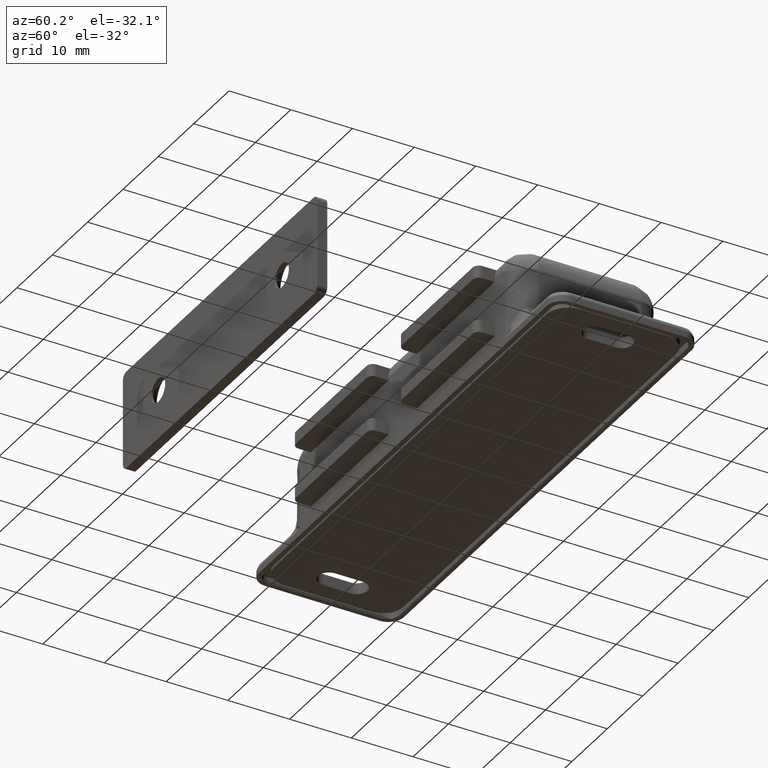
[diagram: clean part render]
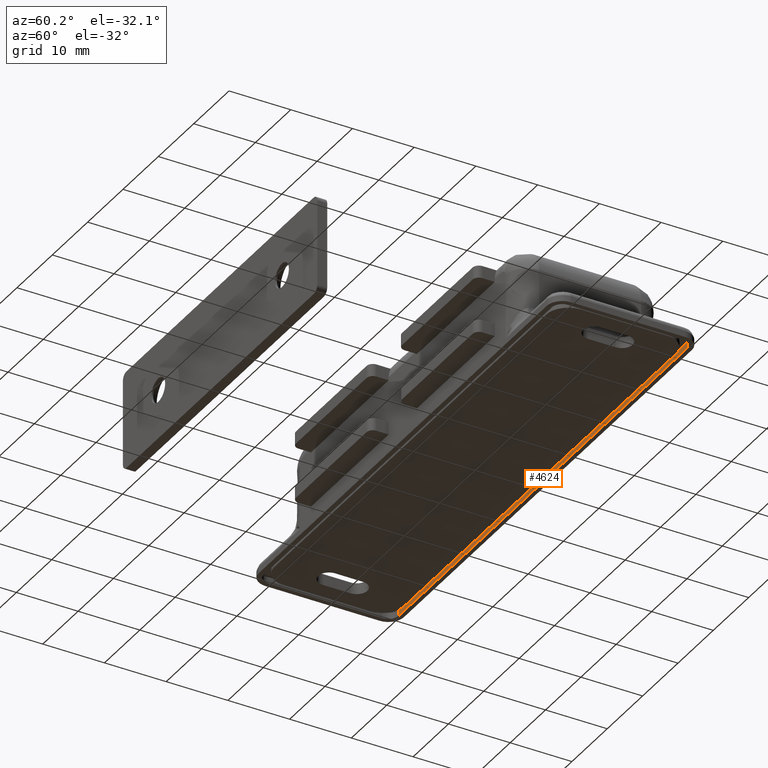
[diagram: same view with one face highlighted and labeled with its STEP entity id]
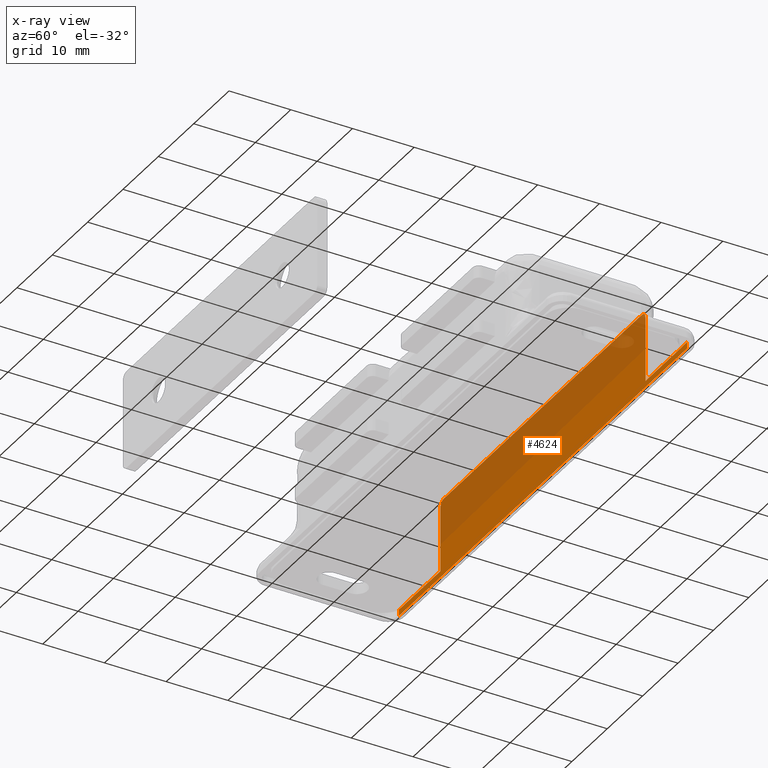
[diagram: x-ray of the same camera — body ghosted, the highlighted face saturated]
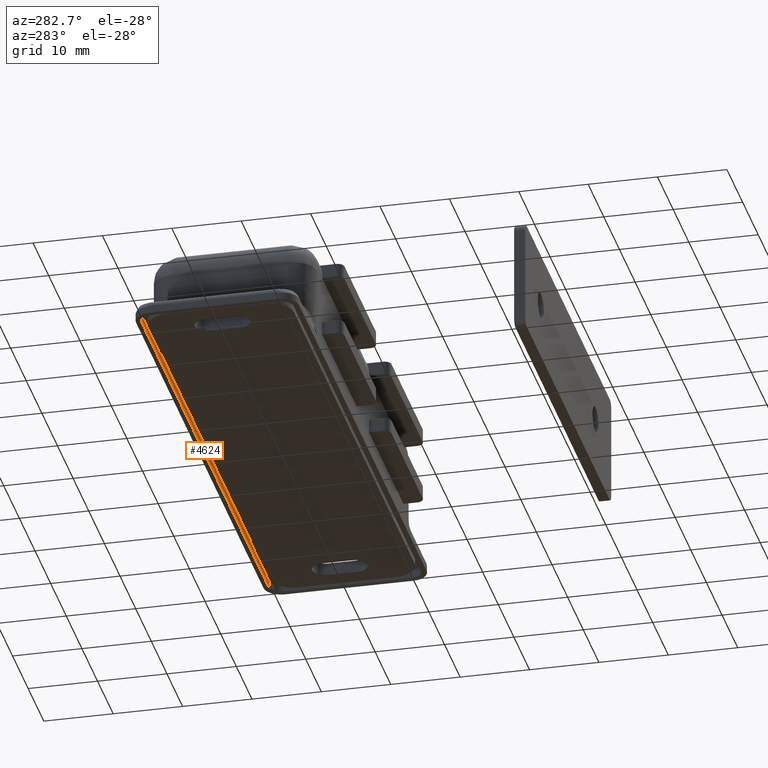
[diagram: same view with one face highlighted and labeled with its STEP entity id]
A machine part, auxiliary view. The second image highlights one B-rep face of the part: STEP entity #4624.
The next image is the same camera in x-ray: the body ghosted, the highlighted face saturated — about 51% of this face is hidden behind the body in this view.
A second angle (auxiliary view) of the same face is appended — the face is thin or edge-on in the first view.
In plain terms, the highlighted face is a freeform B-spline surface patch.
Its self-contained STEP definition (entity closure, byte-faithful):
#2725=CARTESIAN_POINT('',(29.0,10.949999999999999,1.0));
#2726=VERTEX_POINT('',#2725);
#3156=CARTESIAN_POINT('',(-29.000003000000000,10.949999999999999,1.0));
#3157=VERTEX_POINT('',#3156);
#3389=CARTESIAN_POINT('',(-40.750003000000000,10.949999999999999,1.0));
#3390=VERTEX_POINT('',#3389);
#3454=CARTESIAN_POINT('',(-40.750003000000000,10.949999999999999,1.0));
#3455=CARTESIAN_POINT('',(-29.000003000000000,10.949999999999999,1.0));
#3456=QUASI_UNIFORM_CURVE('',1,(#3454,#3455),.UNSPECIFIED.,.F.,.U.);
#3457=EDGE_CURVE('',#3390,#3157,#3456,.T.);
#3636=CARTESIAN_POINT('',(40.750000000000000,10.949999999999999,1.0));
#3637=VERTEX_POINT('',#3636);
#3699=CARTESIAN_POINT('',(29.0,10.949999999999999,1.0));
#3700=CARTESIAN_POINT('',(40.750000000000000,10.949999999999999,1.0));
#3701=QUASI_UNIFORM_CURVE('',1,(#3699,#3700),.UNSPECIFIED.,.F.,.U.);
#3702=EDGE_CURVE('',#2726,#3637,#3701,.T.);
#3773=CARTESIAN_POINT('',(40.750000000000000,10.949999999999999,0.0));
#3774=VERTEX_POINT('',#3773);
#3775=CARTESIAN_POINT('',(40.750000000000000,10.949999999999999,1.0));
#3776=CARTESIAN_POINT('',(40.750000000000000,10.949999999999999,0.0));
#3777=QUASI_UNIFORM_CURVE('',1,(#3775,#3776),.UNSPECIFIED.,.F.,.U.);
#3778=EDGE_CURVE('',#3637,#3774,#3777,.T.);
#3825=CARTESIAN_POINT('',(-40.750003000000000,10.949999999999999,0.0));
#3826=VERTEX_POINT('',#3825);
#3842=CARTESIAN_POINT('',(-40.750003000000000,10.949999999999999,0.0));
#3843=CARTESIAN_POINT('',(-40.750003000000000,10.949999999999999,1.0));
#3844=QUASI_UNIFORM_CURVE('',1,(#3842,#3843),.UNSPECIFIED.,.F.,.U.);
#3845=EDGE_CURVE('',#3826,#3390,#3844,.T.);
#3929=CARTESIAN_POINT('',(-28.000003000000000,10.949999999999999,12.500000000000000));
#3930=VERTEX_POINT('',#3929);
#3961=CARTESIAN_POINT('',(-29.000003000000000,10.949999999999999,11.500000000000000));
#3962=VERTEX_POINT('',#3961);
#3976=CARTESIAN_POINT('',(-28.000003000000000,10.949999999999999,12.500000000000000));
#3977=CARTESIAN_POINT('',(-29.000002999999996,10.949999999999999,12.500000000000000));
#3978=CARTESIAN_POINT('',(-29.000003000000000,10.949999999999999,11.500000000000000));
#3986=(BOUNDED_CURVE()B_SPLINE_CURVE(2,(#3976,#3977,#3978),.UNSPECIFIED.,.F.,.U.)CURVE()GEOMETRIC_REPRESENTATION_ITEM()QUASI_UNIFORM_CURVE()RATIONAL_B_SPLINE_CURVE((1.0,0.707106781186548,1.0))REPRESENTATION_ITEM(''));
#3987=EDGE_CURVE('',#3930,#3962,#3986,.T.);
#4291=CARTESIAN_POINT('',(29.0,10.949999999999999,11.500000000000000));
#4292=VERTEX_POINT('',#4291);
#4293=CARTESIAN_POINT('',(28.0,10.949999999999999,12.500000000000000));
#4294=VERTEX_POINT('',#4293);
#4295=CARTESIAN_POINT('',(29.0,10.949999999999999,11.500000000000000));
#4296=CARTESIAN_POINT('',(29.0,10.949999999999999,12.500000000000000));
#4297=CARTESIAN_POINT('',(28.0,10.949999999999999,12.500000000000000));
#4305=(BOUNDED_CURVE()B_SPLINE_CURVE(2,(#4295,#4296,#4297),.UNSPECIFIED.,.F.,.U.)CURVE()GEOMETRIC_REPRESENTATION_ITEM()QUASI_UNIFORM_CURVE()RATIONAL_B_SPLINE_CURVE((1.0,0.707106781186548,1.0))REPRESENTATION_ITEM(''));
#4306=EDGE_CURVE('',#4292,#4294,#4305,.T.);
#4352=CARTESIAN_POINT('',(-28.000003000000000,10.949999999999999,12.500000000000000));
#4353=CARTESIAN_POINT('',(28.0,10.949999999999999,12.500000000000000));
#4354=QUASI_UNIFORM_CURVE('',1,(#4352,#4353),.UNSPECIFIED.,.F.,.U.);
#4355=EDGE_CURVE('',#3930,#4294,#4354,.T.);
#4382=CARTESIAN_POINT('',(-29.000003000000000,10.949999999999999,1.0));
#4383=CARTESIAN_POINT('',(-29.000003000000000,10.949999999999999,11.500000000000000));
#4384=QUASI_UNIFORM_CURVE('',1,(#4382,#4383),.UNSPECIFIED.,.F.,.U.);
#4385=EDGE_CURVE('',#3157,#3962,#4384,.T.);
#4417=CARTESIAN_POINT('',(29.0,10.949999999999999,11.500000000000000));
#4418=CARTESIAN_POINT('',(29.0,10.949999999999999,1.0));
#4419=QUASI_UNIFORM_CURVE('',1,(#4417,#4418),.UNSPECIFIED.,.F.,.U.);
#4420=EDGE_CURVE('',#4292,#2726,#4419,.T.);
#4603=CARTESIAN_POINT('',(-44.820928756950899,10.949999999999999,13.124374975772570));
#4604=CARTESIAN_POINT('',(44.820927214284531,10.949999999999999,13.124374975772570));
#4605=CARTESIAN_POINT('',(-44.820928756950899,10.949999999999999,-0.624375311048700));
#4606=CARTESIAN_POINT('',(44.820927214284531,10.949999999999999,-0.624375311048700));
#4607=B_SPLINE_SURFACE_WITH_KNOTS('',1,1,((#4603,#4605),(#4604,#4606)),.UNSPECIFIED.,.F.,.F.,.U.,(2,2),(2,2),(0.0,89.641855971235429),(0.0,13.748750286821270),.UNSPECIFIED.);
#4608=ORIENTED_EDGE('',*,*,#3845,.F.);
#4609=CARTESIAN_POINT('',(40.750000000000000,10.949999999999999,0.0));
#4610=CARTESIAN_POINT('',(-40.750003000000000,10.949999999999999,0.0));
#4611=QUASI_UNIFORM_CURVE('',1,(#4609,#4610),.UNSPECIFIED.,.F.,.U.);
#4612=EDGE_CURVE('',#3774,#3826,#4611,.T.);
#4613=ORIENTED_EDGE('',*,*,#4612,.F.);
#4614=ORIENTED_EDGE('',*,*,#3778,.F.);
#4615=ORIENTED_EDGE('',*,*,#3702,.F.);
#4616=ORIENTED_EDGE('',*,*,#4420,.F.);
#4617=ORIENTED_EDGE('',*,*,#4306,.T.);
#4618=ORIENTED_EDGE('',*,*,#4355,.F.);
#4619=ORIENTED_EDGE('',*,*,#3987,.T.);
#4620=ORIENTED_EDGE('',*,*,#4385,.F.);
#4621=ORIENTED_EDGE('',*,*,#3457,.F.);
#4622=EDGE_LOOP('',(#4608,#4613,#4614,#4615,#4616,#4617,#4618,#4619,#4620,#4621));
#4623=FACE_OUTER_BOUND('',#4622,.T.);
#4624=ADVANCED_FACE('',(#4623),#4607,.F.);